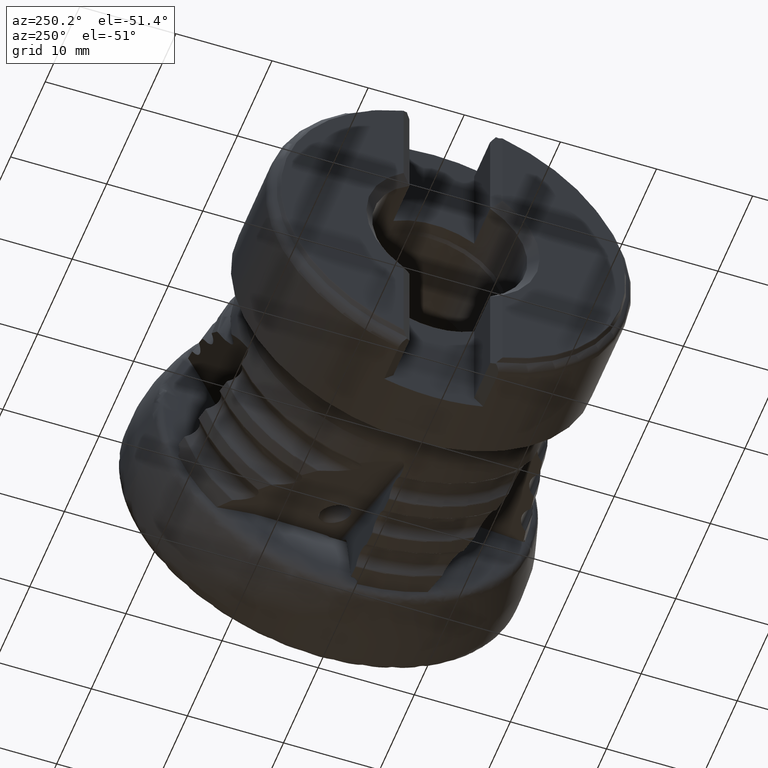
[diagram: clean part render]
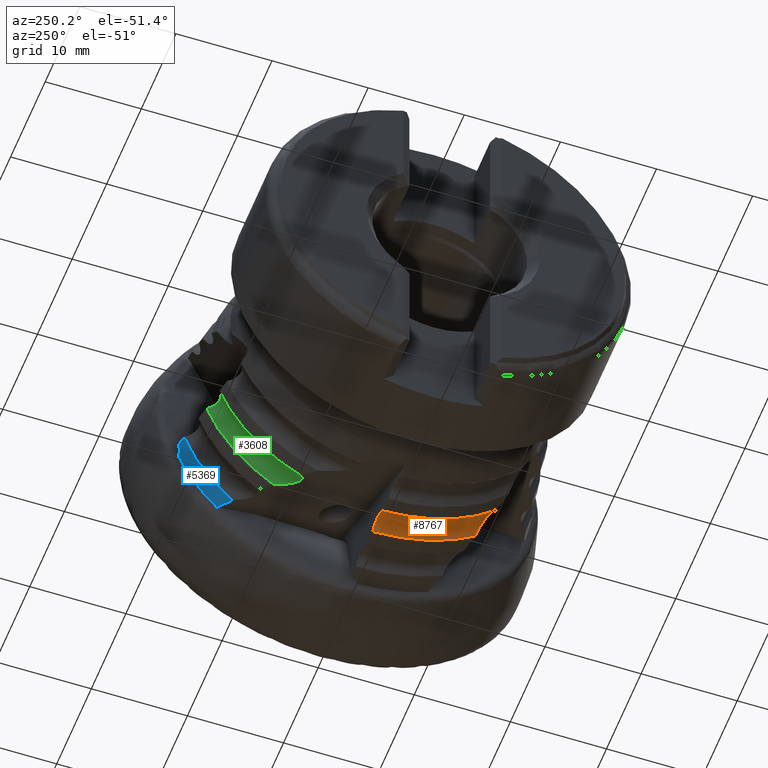
[diagram: same view with three faces highlighted in distinct colors, each labeled with its STEP entity id]
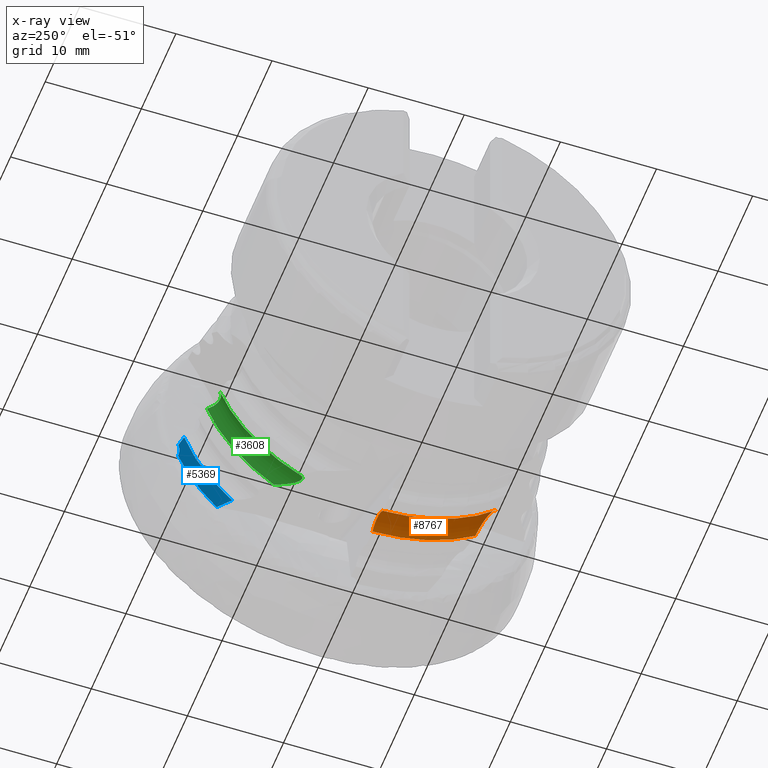
[diagram: x-ray of the same camera — body ghosted, the three highlighted faces saturated]
A machine part, auxiliary view with three faces highlighted in distinct colors.
The next image is the same camera in x-ray (body ghosted, the three faces saturated) — at least one of them is partly hidden behind the body in this view.
Their STEP definitions:

[orange] entity #8767 — the highlighted toroidal blend (fillet) surface has major radius 18.4711 mm and minor (blend) radius 1.5 mm.
#16 = CARTESIAN_POINT ( 'NONE',  ( -15.91267767565716600, -0.4711600045710840900, -16.96586441610718800 ) ) ;
#39 = CARTESIAN_POINT ( 'NONE',  ( -16.03405495560402000, -0.4796475308001411600, -16.95945804219545400 ) ) ;
#203 = VERTEX_POINT ( 'NONE', #8956 ) ;
#367 = DIRECTION ( 'NONE',  ( 1.000000000000000000, -0.0000000000000000000, -0.0000000000000000000 ) ) ;
#553 = CARTESIAN_POINT ( 'NONE',  ( -14.76363208000690400, -11.14974395178128200, -13.71409504779238600 ) ) ;
#725 = EDGE_CURVE ( 'NONE', #8790, #203, #9010, .T. ) ;
#794 = ORIENTED_EDGE ( 'NONE', *, *, #6633, .T. ) ;
#989 = ORIENTED_EDGE ( 'NONE', *, *, #725, .T. ) ;
#1141 = DIRECTION ( 'NONE',  ( 0.0000000000000000000, 0.0000000000000000000, -1.000000000000000000 ) ) ;
#1331 = TOROIDAL_SURFACE ( 'NONE', #9382, 18.47112804715355200, 1.500000000000000900 ) ;
#1830 = CARTESIAN_POINT ( 'NONE',  ( -16.05000000000000100, 0.0000000000000000000, 0.0000000000000000000 ) ) ;
#2027 = AXIS2_PLACEMENT_3D ( 'NONE', #5517, #5528, #5547 ) ;
#2111 = DIRECTION ( 'NONE',  ( 0.0000000000000000000, 0.0000000000000000000, -1.000000000000000000 ) ) ;
#2142 = DIRECTION ( 'NONE',  ( 1.000000000000000000, -0.0000000000000000000, -0.0000000000000000000 ) ) ;
#2156 = CARTESIAN_POINT ( 'NONE',  ( -17.13077898559601300, 0.0000000000000000000, 0.0000000000000000000 ) ) ;
#2566 = CARTESIAN_POINT ( 'NONE',  ( -16.74358885445176200, -0.5292629743124015500, -17.12735032723966100 ) ) ;
#2803 = CARTESIAN_POINT ( 'NONE',  ( -15.55349010785073300, -0.4460431630646415300, -17.04463937497553200 ) ) ;
#2815 = CARTESIAN_POINT ( 'NONE',  ( -15.33115324693827100, -0.4304958552035076400, -17.14358989073353400 ) ) ;
#2901 = ORIENTED_EDGE ( 'NONE', *, *, #3615, .T. ) ;
#2973 = CARTESIAN_POINT ( 'NONE',  ( -14.68017554922010800, -0.3849750601557540000, -17.85576573927178100 ) ) ;
#3179 = CARTESIAN_POINT ( 'NONE',  ( -14.93632320552992400, -0.4028866491483010200, -17.43257880408610600 ) ) ;
#3190 = CARTESIAN_POINT ( 'NONE',  ( -16.62208510932873700, -12.16828880367156400, -11.97891063207156000 ) ) ;
#3206 = CARTESIAN_POINT ( 'NONE',  ( -16.90559743029128700, -12.26370130515799600, -12.10064537176711000 ) ) ;
#3369 = CARTESIAN_POINT ( 'NONE',  ( -17.13077898559625100, -12.31848749952025600, -12.33263076581028600 ) ) ;
#3421 = CARTESIAN_POINT ( 'NONE',  ( -17.13077898559625100, -12.31848749952025600, -12.33263076581028600 ) ) ;
#3495 = AXIS2_PLACEMENT_3D ( 'NONE', #2156, #2142, #2111 ) ;
#3583 = CARTESIAN_POINT ( 'NONE',  ( -17.13077898559608400, -0.5563379457993064000, -17.42209528075491300 ) ) ;
#3597 = CARTESIAN_POINT ( 'NONE',  ( -15.66597922763244500, -11.72831945286306900, -12.33008166085850600 ) ) ;
#3615 = EDGE_CURVE ( 'NONE', #6385, #8790, #8806, .T. ) ;
#3743 = CARTESIAN_POINT ( 'NONE',  ( -14.68017554922010800, -11.06924540602124200, -14.01600449750111600 ) ) ;
#3897 = CARTESIAN_POINT ( 'NONE',  ( -15.17087802722921800, -11.44046046620019300, -12.89875644792241100 ) ) ;
#4054 = CIRCLE ( 'NONE', #3495, 17.43097575816228000 ) ;
#4094 = ORIENTED_EDGE ( 'NONE', *, *, #5078, .T. ) ;
#4201 = CARTESIAN_POINT ( 'NONE',  ( -15.67110890719557600, -0.4542678707274483400, -17.00853658402553800 ) ) ;
#4264 = CARTESIAN_POINT ( 'NONE',  ( -15.78212134025388000, -11.79013958311180800, -12.23345352464046500 ) ) ;
#4384 = B_SPLINE_CURVE_WITH_KNOTS ( 'NONE', 3,
 ( #3743, #553, #7439, #3897, #7340, #3597, #4264, #5512, #5543, #5564, #3190, #3206, #5670, #3369 ),
 .UNSPECIFIED., .F., .F.,
 ( 4, 2, 2, 2, 2, 2, 4 ),
 ( 7.641823678579804400E-007, 0.0009570944499413555700, 0.001913424717514853000, 0.002391589851301596900, 0.002869754985088340700, 0.003347920118875084100, 0.003826085252661828000 ),
 .UNSPECIFIED. ) ;
#4482 = EDGE_LOOP ( 'NONE', ( #989, #4094, #794, #2901 ) ) ;
#4849 = CARTESIAN_POINT ( 'NONE',  ( -16.27798553813194000, -0.4967048187718389200, -16.97625872631675000 ) ) ;
#5021 = CARTESIAN_POINT ( 'NONE',  ( -16.95041218657391400, -0.5437254705632338400, -17.25668010885844000 ) ) ;
#5078 = EDGE_CURVE ( 'NONE', #203, #9226, #4384, .T. ) ;
#5512 = CARTESIAN_POINT ( 'NONE',  ( -16.03359010365453900, -11.91571485106463700, -12.07756996001997700 ) ) ;
#5517 = CARTESIAN_POINT ( 'NONE',  ( -14.68017554922015200, 0.0000000000000000000, 0.0000000000000000000 ) ) ;
#5528 = DIRECTION ( 'NONE',  ( -1.000000000000000000, 0.0000000000000000000, 0.0000000000000000000 ) ) ;
#5543 = CARTESIAN_POINT ( 'NONE',  ( -16.17222225042590000, -11.98109022998717600, -12.01646147542919600 ) ) ;
#5547 = DIRECTION ( 'NONE',  ( 0.0000000000000000000, 0.0000000000000000000, 1.000000000000000000 ) ) ;
#5564 = CARTESIAN_POINT ( 'NONE',  ( -16.46489362997586500, -12.10699730055225800, -11.96548511414189000 ) ) ;
#5670 = CARTESIAN_POINT ( 'NONE',  ( -17.03030820828894700, -12.29764812057518100, -12.20589404393477300 ) ) ;
#5700 = CARTESIAN_POINT ( 'NONE',  ( -16.39950068986882300, -0.5052019859356291500, -16.99984556723028100 ) ) ;
#6088 = CARTESIAN_POINT ( 'NONE',  ( -17.13077898559608400, -0.5563379457993064000, -17.42209528075491300 ) ) ;
#6385 = VERTEX_POINT ( 'NONE', #6088 ) ;
#6633 = EDGE_CURVE ( 'NONE', #9226, #6385, #4054, .T. ) ;
#6823 = CARTESIAN_POINT ( 'NONE',  ( -17.04511172252255200, -0.5503475072046503100, -17.33322791017879500 ) ) ;
#6843 = CARTESIAN_POINT ( 'NONE',  ( -16.63080866049044100, -0.5213766148983179900, -17.07484122593378500 ) ) ;
#7029 = CARTESIAN_POINT ( 'NONE',  ( -14.78076617774149400, -0.3920090421196485400, -17.63012216865712700 ) ) ;
#7142 = CARTESIAN_POINT ( 'NONE',  ( -15.22434137562434300, -0.4230268415648049100, -17.20771996504092600 ) ) ;
#7287 = FACE_OUTER_BOUND ( 'NONE', #4482, .T. ) ;
#7340 = CARTESIAN_POINT ( 'NONE',  ( -15.34797549539630300, -11.55088101383345700, -12.64731135525614100 ) ) ;
#7439 = CARTESIAN_POINT ( 'NONE',  ( -14.87951648391163700, -11.24041693307059300, -13.43087004114470600 ) ) ;
#7874 = CARTESIAN_POINT ( 'NONE',  ( -14.68017554922010800, -0.3849750601557540000, -17.85576573927178100 ) ) ;
#8767 = ADVANCED_FACE ( 'NONE', ( #7287 ), #1331, .F. ) ;
#8790 = VERTEX_POINT ( 'NONE', #7874 ) ;
#8806 = B_SPLINE_CURVE_WITH_KNOTS ( 'NONE', 3,
 ( #3583, #6823, #5021, #2566, #6843, #5700, #4849, #39, #16, #4201, #2803, #2815, #7142, #3179, #7029, #2973 ),
 .UNSPECIFIED., .F., .F.,
 ( 4, 2, 2, 2, 2, 2, 2, 4 ),
 ( 2.844405523381903100E-007, 0.0003657626449774390200, 0.0007312408494025399200, 0.001096719053827640800, 0.001462197258252741600, 0.001827675462677842400, 0.002193153667102943400, 0.002924110075953142400 ),
 .UNSPECIFIED. ) ;
#8956 = CARTESIAN_POINT ( 'NONE',  ( -14.68017554922010800, -11.06924540602124200, -14.01600449750111600 ) ) ;
#9010 = CIRCLE ( 'NONE', #2027, 17.85991533946045000 ) ;
#9226 = VERTEX_POINT ( 'NONE', #3421 ) ;
#9382 = AXIS2_PLACEMENT_3D ( 'NONE', #1830, #367, #1141 ) ;

[blue] entity #5369 — the highlighted conical surface has half-angle 9.928 deg.
#235 = DIRECTION ( 'NONE',  ( 1.000000000000000000, -0.0000000000000000000, -0.0000000000000000000 ) ) ;
#310 = AXIS2_PLACEMENT_3D ( 'NONE', #496, #235, #4337 ) ;
#496 = CARTESIAN_POINT ( 'NONE',  ( -8.810491812418217000, 0.0000000000000000000, 0.0000000000000000000 ) ) ;
#856 = CARTESIAN_POINT ( 'NONE',  ( -9.412815391743269100, 17.94267489963152300, -5.847430442072906400 ) ) ;
#998 = CARTESIAN_POINT ( 'NONE',  ( -8.050000000000000700, 0.0000000000000000000, 0.0000000000000000000 ) ) ;
#1083 = ORIENTED_EDGE ( 'NONE', *, *, #4880, .F. ) ;
#1346 = ORIENTED_EDGE ( 'NONE', *, *, #4515, .F. ) ;
#1407 = VERTEX_POINT ( 'NONE', #2684 ) ;
#1526 = CARTESIAN_POINT ( 'NONE',  ( -8.810491812418854700, 17.73741976414052200, -6.745829333522417300 ) ) ;
#1621 = VERTEX_POINT ( 'NONE', #2045 ) ;
#2045 = CARTESIAN_POINT ( 'NONE',  ( -10.53201490601522600, 12.75222143156447700, -13.64395386577997500 ) ) ;
#2203 = FACE_OUTER_BOUND ( 'NONE', #4456, .T. ) ;
#2222 = AXIS2_PLACEMENT_3D ( 'NONE', #2610, #2575, #2573 ) ;
#2259 = EDGE_CURVE ( 'NONE', #7119, #1407, #3043, .T. ) ;
#2434 = VERTEX_POINT ( 'NONE', #1526 ) ;
#2573 = DIRECTION ( 'NONE',  ( 0.0000000000000000000, 0.0000000000000000000, -1.000000000000000000 ) ) ;
#2575 = DIRECTION ( 'NONE',  ( 1.000000000000000000, -0.0000000000000000000, -0.0000000000000000000 ) ) ;
#2587 = VERTEX_POINT ( 'NONE', #4824 ) ;
#2610 = CARTESIAN_POINT ( 'NONE',  ( -10.53201490601524200, 0.0000000000000000000, 0.0000000000000000000 ) ) ;
#2684 = CARTESIAN_POINT ( 'NONE',  ( -10.53201490601524200, 17.73195789770003500, -5.861253931146295700 ) ) ;
#2691 = DIRECTION ( 'NONE',  ( 1.000000000000000000, -0.0000000000000000000, -0.0000000000000000000 ) ) ;
#2847 = ORIENTED_EDGE ( 'NONE', *, *, #2259, .F. ) ;
#3043 = B_SPLINE_CURVE_WITH_KNOTS ( 'NONE', 3,
 ( #7861, #7703, #7890, #7900 ),
 .UNSPECIFIED., .F., .F.,
 ( 4, 4 ),
 ( 0.001447032345118048100, 0.002585979339104676600 ),
 .UNSPECIFIED. ) ;
#3158 = CIRCLE ( 'NONE', #2222, 18.67556233507265900 ) ;
#3657 = ORIENTED_EDGE ( 'NONE', *, *, #6987, .T. ) ;
#3894 = AXIS2_PLACEMENT_3D ( 'NONE', #998, #2691, #4417 ) ;
#4043 = EDGE_CURVE ( 'NONE', #1621, #1407, #3158, .T. ) ;
#4180 = CIRCLE ( 'NONE', #310, 18.97688787146981700 ) ;
#4337 = DIRECTION ( 'NONE',  ( 0.0000000000000000000, 0.0000000000000000000, -1.000000000000000000 ) ) ;
#4389 = ORIENTED_EDGE ( 'NONE', *, *, #4043, .T. ) ;
#4417 = DIRECTION ( 'NONE',  ( 0.0000000000000000000, 0.0000000000000000000, -1.000000000000000000 ) ) ;
#4456 = EDGE_LOOP ( 'NONE', ( #1083, #1346, #4389, #2847, #6971, #3657 ) ) ;
#4515 = EDGE_CURVE ( 'NONE', #1621, #7365, #7303, .T. ) ;
#4709 = CARTESIAN_POINT ( 'NONE',  ( -9.399042733271787900, 17.88214047466058800, -6.037554932424942700 ) ) ;
#4824 = CARTESIAN_POINT ( 'NONE',  ( -9.399042733271787900, 17.88214047466058800, -6.037554932424942700 ) ) ;
#4880 = EDGE_CURVE ( 'NONE', #7365, #2434, #4180, .T. ) ;
#5369 = ADVANCED_FACE ( 'NONE', ( #2203 ), #7643, .T. ) ;
#5454 = CARTESIAN_POINT ( 'NONE',  ( -9.408276763275395600, 17.92282315850126300, -5.910908771929461700 ) ) ;
#5845 = CARTESIAN_POINT ( 'NONE',  ( -10.53201490601522600, 12.75222143156447700, -13.64395386577997500 ) ) ;
#5889 = CARTESIAN_POINT ( 'NONE',  ( -9.400780168825363600, 13.40317490013178400, -13.29260878131750600 ) ) ;
#6459 = B_SPLINE_CURVE_WITH_KNOTS ( 'NONE', 3,
 ( #9249, #9255, #9239, #9228, #9216, #9210 ),
 .UNSPECIFIED., .F., .F.,
 ( 4, 2, 4 ),
 ( 1.734723475976807100E-018, 0.0004953134492400672800, 0.0009906268984801328400 ),
 .UNSPECIFIED. ) ;
#6971 = ORIENTED_EDGE ( 'NONE', *, *, #9518, .F. ) ;
#6987 = EDGE_CURVE ( 'NONE', #2587, #2434, #6459, .T. ) ;
#7119 = VERTEX_POINT ( 'NONE', #8862 ) ;
#7161 = CARTESIAN_POINT ( 'NONE',  ( -8.810491812418218800, 13.72402781966974800, -13.10623262769546000 ) ) ;
#7283 = CARTESIAN_POINT ( 'NONE',  ( -8.810491812418218800, 13.72402781966974800, -13.10623262769546000 ) ) ;
#7303 =( BOUNDED_CURVE ( )  B_SPLINE_CURVE ( 3, ( #5845, #7371, #5889, #7283 ),
 .UNSPECIFIED., .F., .F. ) 
 B_SPLINE_CURVE_WITH_KNOTS ( ( 4, 4 ),
 ( 3.735590182268711400, 3.776112978296930500 ),
 .UNSPECIFIED. ) 
 CURVE ( )  GEOMETRIC_REPRESENTATION_ITEM ( )  RATIONAL_B_SPLINE_CURVE ( ( 1.000000000000000000, 0.9998631632648338200, 0.9998631632648338200, 1.000000000000000000 ) ) 
 REPRESENTATION_ITEM ( '' )  );
#7365 = VERTEX_POINT ( 'NONE', #7161 ) ;
#7371 = CARTESIAN_POINT ( 'NONE',  ( -9.974699733303834700, 13.07919510509260900, -13.47187372404184200 ) ) ;
#7533 =( BOUNDED_CURVE ( )  B_SPLINE_CURVE ( 3, ( #4709, #8283, #5454, #856 ),
 .UNSPECIFIED., .F., .F. ) 
 B_SPLINE_CURVE_WITH_KNOTS ( ( 4, 4 ),
 ( 2.711649721646324500, 2.721943523319365600 ),
 .UNSPECIFIED. ) 
 CURVE ( )  GEOMETRIC_REPRESENTATION_ITEM ( )  RATIONAL_B_SPLINE_CURVE ( ( 1.000000000000000000, 0.9999911698234194000, 0.9999911698234194000, 1.000000000000000000 ) ) 
 REPRESENTATION_ITEM ( '' )  );
#7643 = CONICAL_SURFACE ( 'NONE', #3894, 19.10999999999999900, 0.1732789170367394800 ) ;
#7703 = CARTESIAN_POINT ( 'NONE',  ( -9.785891183600208300, 17.87248636774810600, -5.852055352896065300 ) ) ;
#7861 = CARTESIAN_POINT ( 'NONE',  ( -9.412815391743269100, 17.94267489963152300, -5.847430442072906400 ) ) ;
#7890 = CARTESIAN_POINT ( 'NONE',  ( -10.15895779311300700, 17.80224789313636800, -5.856663361207569800 ) ) ;
#7900 = CARTESIAN_POINT ( 'NONE',  ( -10.53201490601524200, 17.73195789770003500, -5.861253931146295700 ) ) ;
#8283 = CARTESIAN_POINT ( 'NONE',  ( -9.403685836579541000, 17.90264483866615600, -5.974284161662688500 ) ) ;
#8862 = CARTESIAN_POINT ( 'NONE',  ( -9.412815391743269100, 17.94267489963152300, -5.847430442072906400 ) ) ;
#9210 = CARTESIAN_POINT ( 'NONE',  ( -8.810491812418854700, 17.73741976414052200, -6.745829333522417300 ) ) ;
#9216 = CARTESIAN_POINT ( 'NONE',  ( -8.968391713519155300, 17.72612385258054200, -6.697781736965498400 ) ) ;
#9228 = CARTESIAN_POINT ( 'NONE',  ( -9.113607438490062100, 17.73516584834027300, -6.602392057952825700 ) ) ;
#9239 = CARTESIAN_POINT ( 'NONE',  ( -9.323643965652891600, 17.78799419797655500, -6.350187911297208400 ) ) ;
#9249 = CARTESIAN_POINT ( 'NONE',  ( -9.399042733271787900, 17.88214047466058800, -6.037554932424942700 ) ) ;
#9255 = CARTESIAN_POINT ( 'NONE',  ( -9.387379151054668500, 17.83063304104623700, -6.196492562671928700 ) ) ;
#9518 = EDGE_CURVE ( 'NONE', #2587, #7119, #7533, .T. ) ;

[green] entity #3608 — the highlighted toroidal blend (fillet) surface has major radius 18.4711 mm and minor (blend) radius 1.5 mm.
#195 = CARTESIAN_POINT ( 'NONE',  ( -15.34797549539625900, 8.458889344752487100, -14.89377479908176500 ) ) ;
#237 = CARTESIAN_POINT ( 'NONE',  ( -16.62208510932851600, 7.632412981951866900, -15.27441731830205300 ) ) ;
#248 = CARTESIAN_POINT ( 'NONE',  ( -16.17222225042573700, 7.725973496810829600, -15.10798474370901300 ) ) ;
#299 = CARTESIAN_POINT ( 'NONE',  ( -16.05000000000000100, 0.0000000000000000000, 0.0000000000000000000 ) ) ;
#326 = DIRECTION ( 'NONE',  ( 1.000000000000000000, -0.0000000000000000000, -0.0000000000000000000 ) ) ;
#353 = CARTESIAN_POINT ( 'NONE',  ( -14.68017554922012200, 9.909427464403020000, -14.85866155683034700 ) ) ;
#503 = EDGE_CURVE ( 'NONE', #7920, #8272, #9447, .T. ) ;
#650 = CARTESIAN_POINT ( 'NONE',  ( -15.78212134025377200, 7.991352194168848100, -14.99343411755797300 ) ) ;
#663 = ORIENTED_EDGE ( 'NONE', *, *, #503, .T. ) ;
#677 = CARTESIAN_POINT ( 'NONE',  ( -16.03359010365440400, 7.804293222382598000, -15.06469262381853400 ) ) ;
#1229 = CARTESIAN_POINT ( 'NONE',  ( -17.13077898559611600, 7.922406870538420500, -15.52657029930582800 ) ) ;
#1435 = CARTESIAN_POINT ( 'NONE',  ( -14.68017554922012200, 9.909427464403020000, -14.85866155683034700 ) ) ;
#1915 = CARTESIAN_POINT ( 'NONE',  ( -14.76363208000691400, 9.597419096264175700, -14.84192507260532800 ) ) ;
#1971 = ORIENTED_EDGE ( 'NONE', *, *, #5009, .T. ) ;
#2303 = FACE_OUTER_BOUND ( 'NONE', #2736, .T. ) ;
#2736 = EDGE_LOOP ( 'NONE', ( #7610, #7739, #663, #1971 ) ) ;
#2769 = CARTESIAN_POINT ( 'NONE',  ( -17.03030820828875100, 7.808312807591181400, -15.46758707129366100 ) ) ;
#2784 = CARTESIAN_POINT ( 'NONE',  ( -17.13077898559611600, 7.922406870538420500, -15.52657029930582800 ) ) ;
#2838 = CARTESIAN_POINT ( 'NONE',  ( -15.17087802722919300, 8.732149664370023600, -14.86645942450833300 ) ) ;
#3163 = AXIS2_PLACEMENT_3D ( 'NONE', #4933, #326, #5682 ) ;
#3201 = DIRECTION ( 'NONE',  ( 1.000000000000000000, -0.0000000000000000000, -0.0000000000000000000 ) ) ;
#3276 = AXIS2_PLACEMENT_3D ( 'NONE', #8400, #9035, #8750 ) ;
#3429 = DIRECTION ( 'NONE',  ( 0.0000000000000000000, 0.0000000000000000000, -1.000000000000000000 ) ) ;
#3608 = ADVANCED_FACE ( 'NONE', ( #2303 ), #6535, .F. ) ;
#3972 = CARTESIAN_POINT ( 'NONE',  ( -14.68017554922010800, 16.86287852377554900, -5.883868100585127400 ) ) ;
#4021 = CARTESIAN_POINT ( 'NONE',  ( -14.87951648391163000, 9.300036615965144200, -14.84063886202633900 ) ) ;
#4347 = CARTESIAN_POINT ( 'NONE',  ( -17.13077898559608100, 16.39747936440939200, -5.912832347987484000 ) ) ;
#4406 = CARTESIAN_POINT ( 'NONE',  ( -16.90559743029107400, 7.718705514963581000, -15.40277810294846200 ) ) ;
#4933 = CARTESIAN_POINT ( 'NONE',  ( -17.13077898559601300, 0.0000000000000000000, 0.0000000000000000000 ) ) ;
#4937 = VERTEX_POINT ( 'NONE', #4347 ) ;
#5009 = EDGE_CURVE ( 'NONE', #8272, #8313, #5107, .T. ) ;
#5085 = CARTESIAN_POINT ( 'NONE',  ( -14.68017554922010800, 16.86287852377554900, -5.883868100585127400 ) ) ;
#5107 = B_SPLINE_CURVE_WITH_KNOTS ( 'NONE', 3,
 ( #353, #1915, #4021, #2838, #195, #7471, #650, #677, #248, #6353, #237, #4406, #2769, #2784 ),
 .UNSPECIFIED., .F., .F.,
 ( 4, 2, 2, 2, 2, 2, 4 ),
 ( 7.641823691128644100E-007, 0.0009570944499425293300, 0.001913424717515945900, 0.002391589851302653300, 0.002869754985089362900, 0.003347920118876072100, 0.003826085252662781200 ),
 .UNSPECIFIED. ) ;
#5115 = CARTESIAN_POINT ( 'NONE',  ( -14.78076617774149400, 16.64610511561740200, -5.820830116976019900 ) ) ;
#5143 = CARTESIAN_POINT ( 'NONE',  ( -14.93632320552993400, 16.45486884606128400, -5.770131079243870300 ) ) ;
#5158 = B_SPLINE_CURVE_WITH_KNOTS ( 'NONE', 3,
 ( #5516, #5465, #5406, #5378, #5349, #5338, #5309, #5295, #5278, #5268, #5244, #5212, #5176, #5143, #5115, #5085 ),
 .UNSPECIFIED., .F., .F.,
 ( 4, 2, 2, 2, 2, 2, 2, 4 ),
 ( 2.844405528036078600E-007, 0.0003657626449779106500, 0.0007312408494030176200, 0.001096719053828124800, 0.001462197258253231700, 0.001827675462678328600, 0.002193153667103425700, 0.002924110075953617700 ),
 .UNSPECIFIED. ) ;
#5176 = CARTESIAN_POINT ( 'NONE',  ( -15.22434137562434300, 16.23479172021412300, -5.719800337880643700 ) ) ;
#5211 = CIRCLE ( 'NONE', #3163, 17.43097575816228000 ) ;
#5212 = CARTESIAN_POINT ( 'NONE',  ( -15.33115324693827700, 16.17149234300801200, -5.707086509160517600 ) ) ;
#5244 = CARTESIAN_POINT ( 'NONE',  ( -15.55349010785073600, 16.07258042785972000, -5.691295486641306100 ) ) ;
#5268 = CARTESIAN_POINT ( 'NONE',  ( -15.67110890719557200, 16.03570305882871900, -5.687961272510728300 ) ) ;
#5278 = CARTESIAN_POINT ( 'NONE',  ( -15.91267767565716600, 15.98989945903658400, -5.690840221403256300 ) ) ;
#5295 = CARTESIAN_POINT ( 'NONE',  ( -16.03405495560402700, 15.98118384553703200, -5.696932660119581500 ) ) ;
#5309 = CARTESIAN_POINT ( 'NONE',  ( -16.27798553813194700, 15.99189125378760300, -5.718346801905991800 ) ) ;
#5338 = CARTESIAN_POINT ( 'NONE',  ( -16.39950068986882300, 16.01169790347957500, -5.733716822793061500 ) ) ;
#5349 = CARTESIAN_POINT ( 'NONE',  ( -16.63080866049044500, 16.07802477815620500, -5.772274742110410800 ) ) ;
#5378 = CARTESIAN_POINT ( 'NONE',  ( -16.74358885445176200, 16.12552688203526700, -5.796001320283892300 ) ) ;
#5406 = CARTESIAN_POINT ( 'NONE',  ( -16.95041218657392100, 16.24405765647224000, -5.849721071984141000 ) ) ;
#5465 = CARTESIAN_POINT ( 'NONE',  ( -17.04511172252255200, 16.31481261986645800, -5.879673574573131700 ) ) ;
#5516 = CARTESIAN_POINT ( 'NONE',  ( -17.13077898559608100, 16.39747936440939200, -5.912832347987484000 ) ) ;
#5682 = DIRECTION ( 'NONE',  ( 0.0000000000000000000, 0.0000000000000000000, -1.000000000000000000 ) ) ;
#6353 = CARTESIAN_POINT ( 'NONE',  ( -16.46489362997567000, 7.638584671714896900, -15.21197692166837400 ) ) ;
#6436 = EDGE_CURVE ( 'NONE', #4937, #7920, #5158, .T. ) ;
#6535 = TOROIDAL_SURFACE ( 'NONE', #9183, 18.47112804715355200, 1.500000000000000900 ) ;
#7471 = CARTESIAN_POINT ( 'NONE',  ( -15.66597922763236100, 8.102354483617801900, -14.96449941607286100 ) ) ;
#7610 = ORIENTED_EDGE ( 'NONE', *, *, #9172, .T. ) ;
#7739 = ORIENTED_EDGE ( 'NONE', *, *, #6436, .T. ) ;
#7920 = VERTEX_POINT ( 'NONE', #3972 ) ;
#8272 = VERTEX_POINT ( 'NONE', #1435 ) ;
#8313 = VERTEX_POINT ( 'NONE', #1229 ) ;
#8400 = CARTESIAN_POINT ( 'NONE',  ( -14.68017554922015200, 0.0000000000000000000, 0.0000000000000000000 ) ) ;
#8750 = DIRECTION ( 'NONE',  ( 0.0000000000000000000, 0.0000000000000000000, 1.000000000000000000 ) ) ;
#9035 = DIRECTION ( 'NONE',  ( -1.000000000000000000, 0.0000000000000000000, 0.0000000000000000000 ) ) ;
#9172 = EDGE_CURVE ( 'NONE', #8313, #4937, #5211, .T. ) ;
#9183 = AXIS2_PLACEMENT_3D ( 'NONE', #299, #3201, #3429 ) ;
#9447 = CIRCLE ( 'NONE', #3276, 17.85991533946045000 ) ;